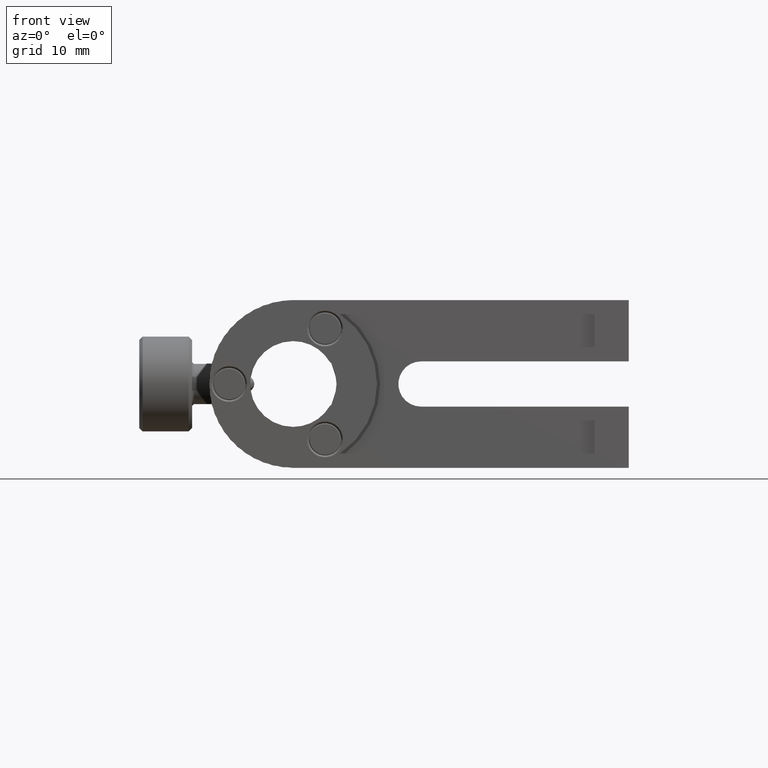
[diagram: clean part render]
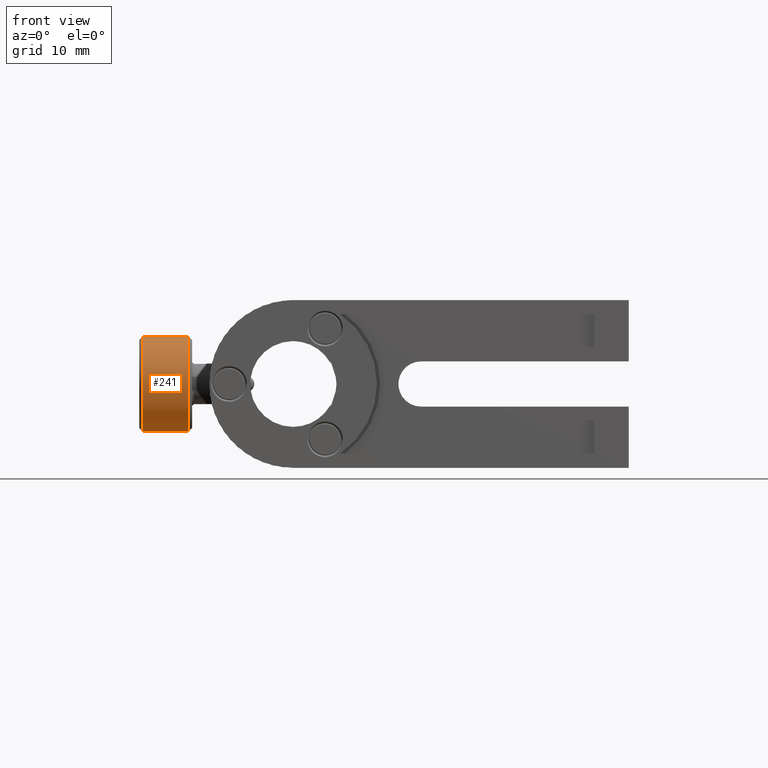
[diagram: same view with one face highlighted and labeled with its STEP entity id]
A machine part, front view. The second image highlights one B-rep face of the part: STEP entity #241.
In plain terms, the highlighted cylindrical surface (partial cylindrical patch) has radius 7.0592 mm, axis along (-1, -0, -0).
Its self-contained STEP definition (entity closure, byte-faithful):
#28 = DIRECTION ( 'NONE',  ( 0.0000000000000000000, 0.0000000000000000000, 1.000000000000000000 ) ) ;
#175 = ORIENTED_EDGE ( 'NONE', *, *, #2501, .T. ) ;
#189 = DIRECTION ( 'NONE',  ( 0.0000000000000000000, 0.0000000000000000000, 1.000000000000000000 ) ) ;
#238 = VERTEX_POINT ( 'NONE', #1052 ) ;
#241 = ADVANCED_FACE ( 'NONE', ( #301 ), #1947, .T. ) ;
#301 = FACE_OUTER_BOUND ( 'NONE', #1782, .T. ) ;
#443 = CARTESIAN_POINT ( 'NONE',  ( -18.27973335610862200, 64.74362325169910500, -7.059201897910371700 ) ) ;
#630 = DIRECTION ( 'NONE',  ( -1.000000000000000000, -0.0000000000000000000, -0.0000000000000000000 ) ) ;
#670 = CARTESIAN_POINT ( 'NONE',  ( -11.42173335610862000, 64.74362325169910500, 0.0000000000000000000 ) ) ;
#992 = CARTESIAN_POINT ( 'NONE',  ( -18.27973335610862200, 64.74362325169910500, 7.059201897910371700 ) ) ;
#1041 = VECTOR ( 'NONE', #2056, 1000.000000000000000 ) ;
#1052 = CARTESIAN_POINT ( 'NONE',  ( -11.42173335610862000, 64.74362325169910500, 7.059201897910371700 ) ) ;
#1055 = AXIS2_PLACEMENT_3D ( 'NONE', #3773, #2855, #1700 ) ;
#1421 = AXIS2_PLACEMENT_3D ( 'NONE', #670, #630, #28 ) ;
#1463 = EDGE_CURVE ( 'NONE', #1542, #1564, #3333, .T. ) ;
#1542 = VERTEX_POINT ( 'NONE', #3323 ) ;
#1564 = VERTEX_POINT ( 'NONE', #443 ) ;
#1700 = DIRECTION ( 'NONE',  ( 0.0000000000000000000, 0.0000000000000000000, 1.000000000000000000 ) ) ;
#1782 = EDGE_LOOP ( 'NONE', ( #1962, #3277, #175, #2576 ) ) ;
#1947 = CYLINDRICAL_SURFACE ( 'NONE', #3293, 7.059201897910371700 ) ;
#1962 = ORIENTED_EDGE ( 'NONE', *, *, #1463, .F. ) ;
#2056 = DIRECTION ( 'NONE',  ( -1.000000000000000000, -0.0000000000000000000, -0.0000000000000000000 ) ) ;
#2501 = EDGE_CURVE ( 'NONE', #238, #2663, #3366, .T. ) ;
#2562 = VECTOR ( 'NONE', #3559, 1000.000000000000000 ) ;
#2576 = ORIENTED_EDGE ( 'NONE', *, *, #2928, .F. ) ;
#2663 = VERTEX_POINT ( 'NONE', #992 ) ;
#2855 = DIRECTION ( 'NONE',  ( -1.000000000000000000, -0.0000000000000000000, -0.0000000000000000000 ) ) ;
#2875 = CIRCLE ( 'NONE', #1055, 7.059201897910371700 ) ;
#2928 = EDGE_CURVE ( 'NONE', #1564, #2663, #2875, .T. ) ;
#3115 = EDGE_CURVE ( 'NONE', #1542, #238, #3510, .T. ) ;
#3274 = CARTESIAN_POINT ( 'NONE',  ( -18.78773335610861700, 64.74362325169910500, 7.059201897910371700 ) ) ;
#3277 = ORIENTED_EDGE ( 'NONE', *, *, #3115, .T. ) ;
#3293 = AXIS2_PLACEMENT_3D ( 'NONE', #3694, #3397, #189 ) ;
#3323 = CARTESIAN_POINT ( 'NONE',  ( -11.42173335610862000, 64.74362325169910500, -7.059201897910371700 ) ) ;
#3333 = LINE ( 'NONE', #3613, #2562 ) ;
#3366 = LINE ( 'NONE', #3274, #1041 ) ;
#3397 = DIRECTION ( 'NONE',  ( -1.000000000000000000, -0.0000000000000000000, -0.0000000000000000000 ) ) ;
#3510 = CIRCLE ( 'NONE', #1421, 7.059201897910371700 ) ;
#3559 = DIRECTION ( 'NONE',  ( -1.000000000000000000, -0.0000000000000000000, -0.0000000000000000000 ) ) ;
#3613 = CARTESIAN_POINT ( 'NONE',  ( -18.78773335610861700, 64.74362325169910500, -7.059201897910371700 ) ) ;
#3694 = CARTESIAN_POINT ( 'NONE',  ( -18.78773335610861700, 64.74362325169910500, 0.0000000000000000000 ) ) ;
#3773 = CARTESIAN_POINT ( 'NONE',  ( -18.27973335610862200, 64.74362325169910500, 0.0000000000000000000 ) ) ;